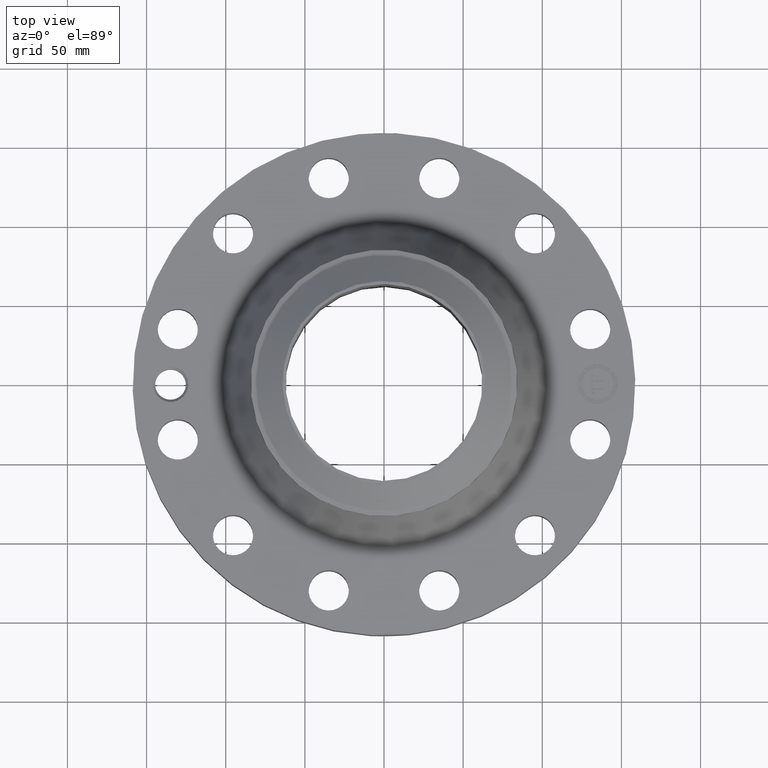
[diagram: clean part render]
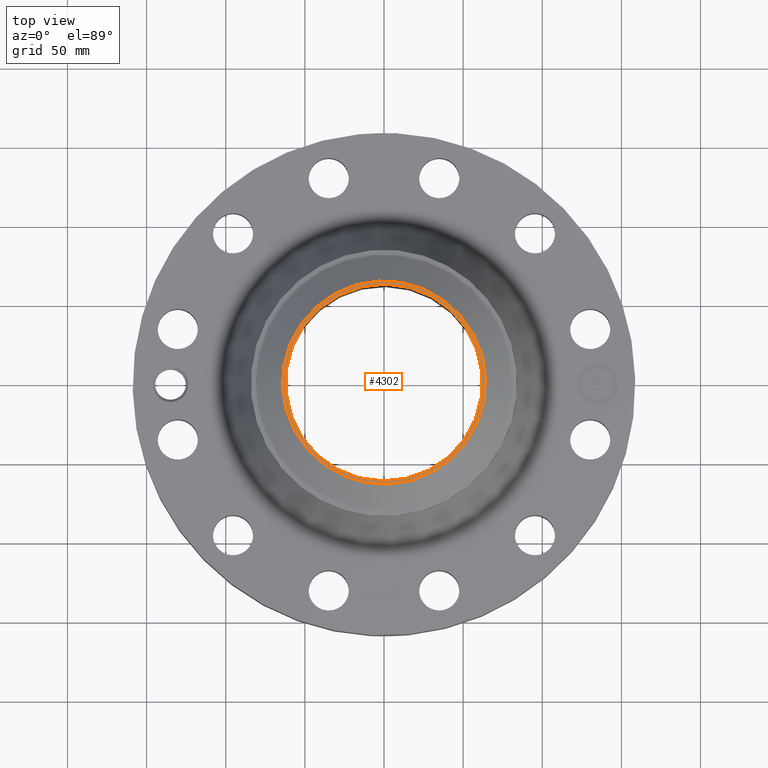
[diagram: same view with one face highlighted and labeled with its STEP entity id]
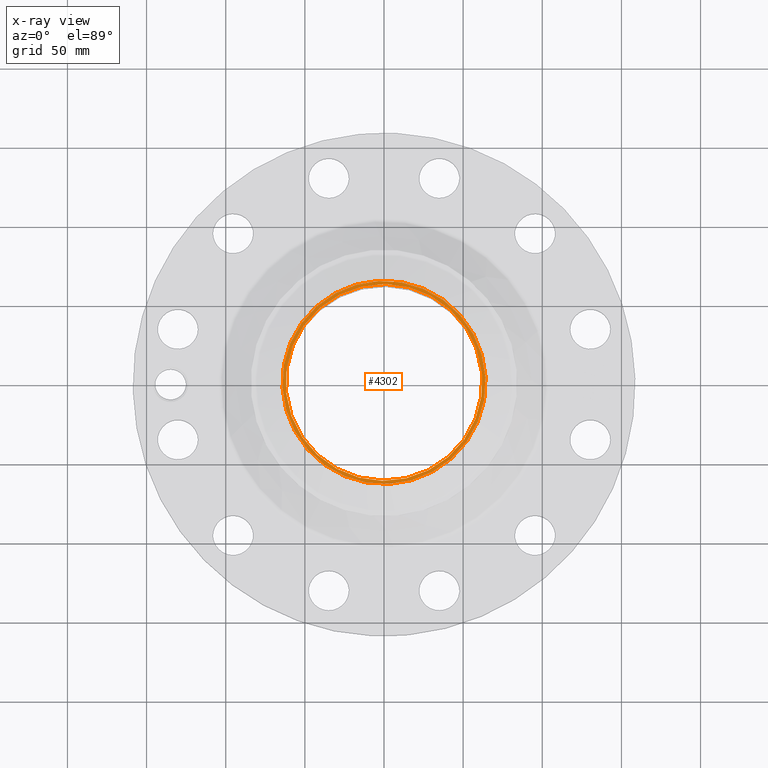
[diagram: x-ray of the same camera — body ghosted, the highlighted face saturated]
A machine part, top view. The second image highlights one B-rep face of the part: STEP entity #4302.
The next image is the same camera in x-ray: the body ghosted, the highlighted face saturated — about 0% of this face is hidden behind the body in this view.
In plain terms, the highlighted planar face has unit normal (0, 0, -1).
Its self-contained STEP definition (entity closure, byte-faithful):
#3112=AXIS2_PLACEMENT_3D('Circle Axis2P3D',#3110,#3111,$) ;
#3180=AXIS2_PLACEMENT_3D('Circle Axis2P3D',#3178,#3179,$) ;
#4278=AXIS2_PLACEMENT_3D('Plane Axis2P3D',#4275,#4276,#4277) ;
#4282=AXIS2_PLACEMENT_3D('Circle Axis2P3D',#4280,#4281,$) ;
#4291=AXIS2_PLACEMENT_3D('Circle Axis2P3D',#4289,#4290,$) ;
#3110=CARTESIAN_POINT('Axis2P3D Location',(0.,0.,4.31000000002)) ;
#3114=CARTESIAN_POINT('Vertex',(1.17387343128,2.1487609028,4.31000000002)) ;
#3116=CARTESIAN_POINT('Vertex',(-1.17387343128,-2.1487609028,4.31000000002)) ;
#3178=CARTESIAN_POINT('Axis2P3D Location',(0.,0.,4.31000000002)) ;
#4275=CARTESIAN_POINT('Axis2P3D Location',(0.,3.31500000001,4.31000000002)) ;
#4280=CARTESIAN_POINT('Axis2P3D Location',(0.,0.,4.31000000002)) ;
#4284=CARTESIAN_POINT('Vertex',(1.21162347369,-2.21786189192,4.31000000002)) ;
#4286=CARTESIAN_POINT('Vertex',(-1.21162347369,2.21786189192,4.31000000002)) ;
#4289=CARTESIAN_POINT('Axis2P3D Location',(0.,0.,4.31000000002)) ;
#3111=DIRECTION('Axis2P3D Direction',(0.,0.,-0.0393700787402)) ;
#3179=DIRECTION('Axis2P3D Direction',(0.,0.,-0.0393700787402)) ;
#4276=DIRECTION('Axis2P3D Direction',(0.,0.,-0.0393700787402)) ;
#4277=DIRECTION('Axis2P3D XDirection',(0.0393700787402,0.,0.)) ;
#4281=DIRECTION('Axis2P3D Direction',(0.,0.,-0.0393700787402)) ;
#4290=DIRECTION('Axis2P3D Direction',(0.,0.,-0.0393700787402)) ;
#4295=ORIENTED_EDGE('',*,*,#4288,.T.) ;
#4296=ORIENTED_EDGE('',*,*,#4293,.T.) ;
#4299=ORIENTED_EDGE('',*,*,#3182,.T.) ;
#4300=ORIENTED_EDGE('',*,*,#3118,.T.) ;
#4301=FACE_BOUND('',#4298,.T.) ;
#4302=ADVANCED_FACE('PartBody',(#4297,#4301),#4279,.F.) ;
#3113=CIRCLE('generated circle',#3112,2.44850000001) ;
#3181=CIRCLE('generated circle',#3180,2.44850000001) ;
#4283=CIRCLE('generated circle',#4282,2.52724015749) ;
#4292=CIRCLE('generated circle',#4291,2.52724015749) ;
#3118=EDGE_CURVE('',#3115,#3117,#3113,.T.) ;
#3182=EDGE_CURVE('',#3117,#3115,#3181,.T.) ;
#4288=EDGE_CURVE('',#4285,#4287,#4283,.F.) ;
#4293=EDGE_CURVE('',#4287,#4285,#4292,.F.) ;
#4294=EDGE_LOOP('',(#4295,#4296)) ;
#4298=EDGE_LOOP('',(#4299,#4300)) ;
#4297=FACE_OUTER_BOUND('',#4294,.T.) ;
#4279=PLANE('',#4278) ;
#3115=VERTEX_POINT('',#3114) ;
#3117=VERTEX_POINT('',#3116) ;
#4285=VERTEX_POINT('',#4284) ;
#4287=VERTEX_POINT('',#4286) ;